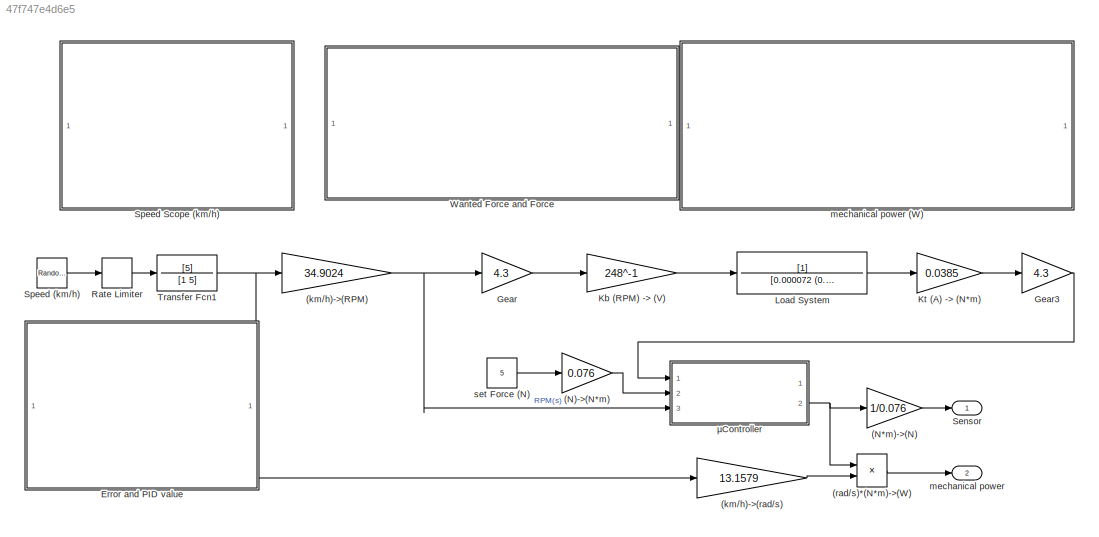
MODEL slx_47f747e4d6e5
KIND model
CONFIG AbsTol = auto
CONFIG FixedStep = 0.0000001
CONFIG MaxStep = auto
CONFIG MinStep = auto
CONFIG RelTol = 1e-1
CONFIG SampleTimeConstraint = Unconstrained
CONFIG Solver = ode45
CONFIG SolverMode = SingleTasking
CONFIG SolverName = ode45
CONFIG StartTime = 0.0
CONFIG StopTime = 10.0
BLOCK [Gain] (N)->(N*m)
  Gain = 0.076
  OutDataTypeStr = Inherit: Inherit via internal rule
  ParamDataTypeStr = Inherit: Inherit via internal rule
  SaturateOnIntegerOverflow = off
BLOCK [Gain] (N*m)->(N)
  Gain = 1/0.076
  OutDataTypeStr = Inherit: Inherit via internal rule
  ParamDataTypeStr = Inherit: Inherit via internal rule
  SaturateOnIntegerOverflow = off
BLOCK [Gain] (km//h)->(RPM)
  Gain = 34.9024
  OutDataTypeStr = Inherit: Inherit via internal rule
  ParamDataTypeStr = Inherit: Inherit via internal rule
  SaturateOnIntegerOverflow = off
BLOCK [Gain] (km//h)->(rad//s)
  Gain = 13.1579
  OutDataTypeStr = Inherit: Inherit via internal rule
  ParamDataTypeStr = Inherit: Inherit via internal rule
  SaturateOnIntegerOverflow = off
BLOCK [Product] (rad//s)*(N*m)->(W)
  InputSameDT = off
  OutDataTypeStr = Inherit: Inherit via internal rule
  Ports = [2, 1]
  RndMeth = Floor
  SaturateOnIntegerOverflow = off
BLOCK [SubSystem] Error and PID value
  DialogController = hmiCreateDDGDialog
  IsWebBlock = on
  MaskHideContents = on
  Ports = []
  RequestExecContextInheritance = off
BLOCK [Gain] Gear
  Gain = 4.3
  OutDataTypeStr = Inherit: Inherit via internal rule
  ParamDataTypeStr = Inherit: Inherit via internal rule
  SaturateOnIntegerOverflow = off
BLOCK [Gain] Gear3
  Gain = 4.3
  OutDataTypeStr = Inherit: Inherit via internal rule
  ParamDataTypeStr = Inherit: Inherit via internal rule
  SaturateOnIntegerOverflow = off
BLOCK [Gain] Kb (RPM) -> (V)
  Gain = 248^-1
  OutDataTypeStr = Inherit: Inherit via internal rule
  ParamDataTypeStr = Inherit: Inherit via internal rule
  SaturateOnIntegerOverflow = off
BLOCK [Gain] Kt (A) -> (N*m)
  Gain = 0.0385
  OutDataTypeStr = Inherit: Inherit via internal rule
  ParamDataTypeStr = Inherit: Inherit via internal rule
  SaturateOnIntegerOverflow = off
BLOCK [TransferFcn] Load System
  Denominator = [0.000072 (0.103+1.1)]
BLOCK [RateLimiter] Rate Limiter
  FallingSlewLimit = -10
  RisingSlewLimit = 10
BLOCK [Outport] Sensor
  IconDisplay = Port number
BLOCK [RandomNumber] Speed (km//h)
  Mean = 24.8
  SampleTime = 1
  Variance = 4
BLOCK [SubSystem] Speed Scope (km//h)
  DialogController = hmiCreateDDGDialog
  IsWebBlock = on
  MaskHideContents = on
  Ports = []
  RequestExecContextInheritance = off
BLOCK [TransferFcn] Transfer Fcn1
  Denominator = [1 5]
  Numerator = [5]
BLOCK [SubSystem] Wanted Force and Force
  DialogController = hmiCreateDDGDialog
  IsWebBlock = on
  MaskHideContents = on
  Ports = []
  RequestExecContextInheritance = off
BLOCK [Outport] mechanical power
  IconDisplay = Port number
  Port = 2
BLOCK [SubSystem] mechanical power (W)
  DialogController = hmiCreateDDGDialog
  IsWebBlock = on
  MaskHideContents = on
  Ports = []
  RequestExecContextInheritance = off
BLOCK [Constant] set Force (N)
  Value = 5
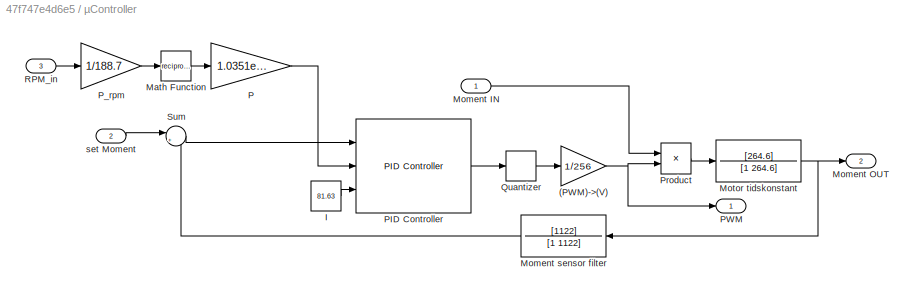
BLOCK [SubSystem] µController
  Ports = [3, 2]
  RequestExecContextInheritance = off
BLOCK [Gain] µController/(PWM)->(V)
  Gain = 1/256
  OutDataTypeStr = Inherit: Inherit via internal rule
  ParamDataTypeStr = Inherit: Inherit via internal rule
  SaturateOnIntegerOverflow = off
BLOCK [Constant] µController/I
  Value = 81.63
BLOCK [Math] µController/Math Function
  Operator = reciprocal
  OutMax = [188.7]
  OutMin = [0]
  OutputSignalType = real
  Ports = [1, 1]
BLOCK [Inport] µController/Moment IN
  IconDisplay = Port number
BLOCK [Outport] µController/Moment OUT
  IconDisplay = Port number
  Port = 2
BLOCK [TransferFcn] µController/Moment sensor filter
  Denominator = [1 1122]
  Numerator = [1122]
BLOCK [TransferFcn] µController/Motor tidskonstant
  AbsoluteTolerance = 50
  Denominator = [1 264.6]
  Numerator = [264.6]
BLOCK [Gain] µController/P
  Gain = 1.0351e+03
  OutDataTypeStr = Inherit: Inherit via internal rule
  ParamDataTypeStr = Inherit: Inherit via internal rule
  SaturateOnIntegerOverflow = off
BLOCK [Reference] µController/PID Controller  REF=simulink/Continuous/PID Controller
  AntiWindupMode = clamping
  Controller = PI
  ControllerParametersSource = external
  D = -0.00741521132146646
  DGainOutDataTypeStr = Inherit: Inherit via internal rule
  DOutDataTypeStr = Inherit: Inherit via internal rule
  DOutMax = []
  DOutMin = []
  DParamDataTypeStr = Inherit: Inherit via internal rule
  DParamMax = []
  DParamMin = []
  DProdOutDataTypeStr = Inherit: Inherit via internal rule
  DifferentiatorICPrevScaledInput = 0
  DifferentiatorOutDataTypeStr = Inherit: Inherit via internal rule
  DifferentiatorOutMax = []
  DifferentiatorOutMin = []
  ExternalReset = none
  FilterContinuousStateAttributes = ''
  FilterMethod = Forward Euler
  FilterOutDataTypeStr = Inherit: Inherit via internal rule
  FilterOutMax = []
  FilterOutMin = []
  FilterRTWStateStorageClass = Auto
  FilterStateMustResolveToSignalObject = off
  Form = Ideal
  I = 81.6
  IGainOutDataTypeStr = Inherit: Inherit via internal rule
  IOutDataTypeStr = Inherit: Inherit via internal rule
  IOutMax = []
  IOutMin = []
  IParamDataTypeStr = Inherit: Inherit via internal rule
  IParamMax = []
  IParamMin = []
  IProdOutDataTypeStr = Inherit: Inherit via internal rule
  IgnoreLimit = off
  InitialConditionForFilter = 0
  InitialConditionForIntegrator = 0
  InitialConditionSource = internal
  IntegratorContinuousStateAttributes = ''
  IntegratorMethod = Forward Euler
  IntegratorOutDataTypeStr = Inherit: Inherit via internal rule
  IntegratorOutMax = []
  IntegratorOutMin = []
  IntegratorRTWStateStorageClass = Auto
  IntegratorStateMustResolveToSignalObject = off
  Kb = 1
  KbOutDataTypeStr = Inherit: Inherit via internal rule
  KbOutMax = []
  KbOutMin = []
  KbParamDataTypeStr = Inherit: Inherit via internal rule
  KbParamMax = []
  KbParamMin = []
  Kt = 1
  KtOutDataTypeStr = Inherit: Inherit via internal rule
  KtOutMax = []
  KtOutMin = []
  KtParamDataTypeStr = Inherit: Inherit via internal rule
  KtParamMax = []
  KtParamMin = []
  LimitOutput = on
  LinearizeAsGain = off
  LockScale = off
  LowerSaturationLimit = 0
  N = 107.889000574029
  NGainOutDataTypeStr = Inherit: Inherit via internal rule
  NOutDataTypeStr = Inherit: Inherit via internal rule
  NOutMax = []
  NOutMin = []
  NParamDataTypeStr = Inherit: Inherit via internal rule
  NParamMax = []
  NParamMin = []
  NProdOutDataTypeStr = Inherit: Inherit via internal rule
  P = 1000
  PGainOutDataTypeStr = Inherit: Inherit via internal rule
  POutDataTypeStr = Inherit: Inherit via internal rule
  POutMax = []
  POutMin = []
  PParamDataTypeStr = Inherit: Inherit via internal rule
  PParamMax = []
  PParamMin = []
  PProdOutDataTypeStr = Inherit: Inherit via internal rule
  Ports = [3, 1]
  RndMeth = Floor
  SampleTime = 1.8382e-04
  SaturateOnIntegerOverflow = off
  SaturationOutDataTypeStr = Inherit: Same as input
  SaturationOutMax = []
  SaturationOutMin = []
  SourceBlock = simulink/Continuous/PID Controller
  SourceType = PID 1dof
  SumAccumDataTypeStr = Inherit: Inherit via internal rule
  SumDAccumDataTypeStr = Inherit: Inherit via internal rule
  SumDOutDataTypeStr = Inherit: Inherit via internal rule
  SumDOutMax = []
  SumDOutMin = []
  SumI1AccumDataTypeStr = Inherit: Inherit via internal rule
  SumI1OutDataTypeStr = Inherit: Inherit via internal rule
  SumI1OutMax = []
  SumI1OutMin = []
  SumI2AccumDataTypeStr = Inherit: Inherit via internal rule
  SumI2OutDataTypeStr = Inherit: Inherit via internal rule
  SumI2OutMax = []
  SumI2OutMin = []
  SumI3AccumDataTypeStr = Inherit: Inherit via internal rule
  SumI3OutDataTypeStr = Inherit: Inherit via internal rule
  SumI3OutMax = []
  SumI3OutMin = []
  SumOutDataTypeStr = Inherit: Inherit via internal rule
  SumOutMax = []
  SumOutMin = []
  TimeDomain = Discrete-time
  TrackingMode = off
  UpperSaturationLimit = 256
  UseFilter = off
  ZeroCross = on
BLOCK [Outport] µController/PWM
  IconDisplay = Port number
BLOCK [Gain] µController/P_rpm
  Gain = 1/188.7
  OutDataTypeStr = Inherit: Inherit via internal rule
  ParamDataTypeStr = Inherit: Inherit via internal rule
  SaturateOnIntegerOverflow = off
BLOCK [Product] µController/Product
  InputSameDT = off
  OutDataTypeStr = Inherit: Inherit via internal rule
  Ports = [2, 1]
  RndMeth = Floor
  SaturateOnIntegerOverflow = off
BLOCK [Quantizer] µController/Quantizer
  QuantizationInterval = 1
BLOCK [Inport] µController/RPM_in
  IconDisplay = Port number
  Port = 3
BLOCK [Sum] µController/Sum
  IconShape = round
  InputSameDT = off
  Inputs = |+-
  OutDataTypeStr = Inherit: Inherit via internal rule
  Ports = [2, 1]
  SaturateOnIntegerOverflow = off
BLOCK [Inport] µController/set Moment
  IconDisplay = Port number
  Port = 2
LINE (N)->(N*m):1 -> µController:2
LINE (N*m)->(N):1 -> Sensor:1
NET (km//h)->(RPM):1 -> Gear:1, µController:3
LINE (km//h)->(rad//s):1 -> (rad//s)*(N*m)->(W):2
LINE (rad//s)*(N*m)->(W):1 -> mechanical power:1
LINE Gear3:1 -> µController:1
LINE Gear:1 -> Kb (RPM) -> (V):1
LINE Kb (RPM) -> (V):1 -> Load System:1
LINE Kt (A) -> (N*m):1 -> Gear3:1
LINE Load System:1 -> Kt (A) -> (N*m):1
LINE Rate Limiter:1 -> Transfer Fcn1:1
LINE Speed (km//h):1 -> Rate Limiter:1
NET Transfer Fcn1:1 -> (km//h)->(RPM):1, (km//h)->(rad//s):1
LINE set Force (N):1 -> (N)->(N*m):1
NET µController/(PWM)->(V):1 -> µController/PWM:1, µController/Product:2
LINE µController/I:1 -> µController/PID Controller:3
LINE µController/Math Function:1 -> µController/P:1
LINE µController/Moment IN:1 -> µController/Product:1
LINE µController/Moment sensor filter:1 -> µController/Sum:2
NET µController/Motor tidskonstant:1 -> µController/Moment OUT:1, µController/Moment sensor filter:1
LINE µController/P:1 -> µController/PID Controller:2
LINE µController/PID Controller:1 -> µController/Quantizer:1
LINE µController/P_rpm:1 -> µController/Math Function:1
LINE µController/Product:1 -> µController/Motor tidskonstant:1
LINE µController/Quantizer:1 -> µController/(PWM)->(V):1
LINE µController/RPM_in:1 -> µController/P_rpm:1
LINE µController/Sum:1 -> µController/PID Controller:1
LINE µController/set Moment:1 -> µController/Sum:1
NET µController:2 -> (N*m)->(N):1, (rad//s)*(N*m)->(W):1
note: NET lines group one-source signal fan-out (src -> all destinations, sorted); 1:1 wires keep LINE
